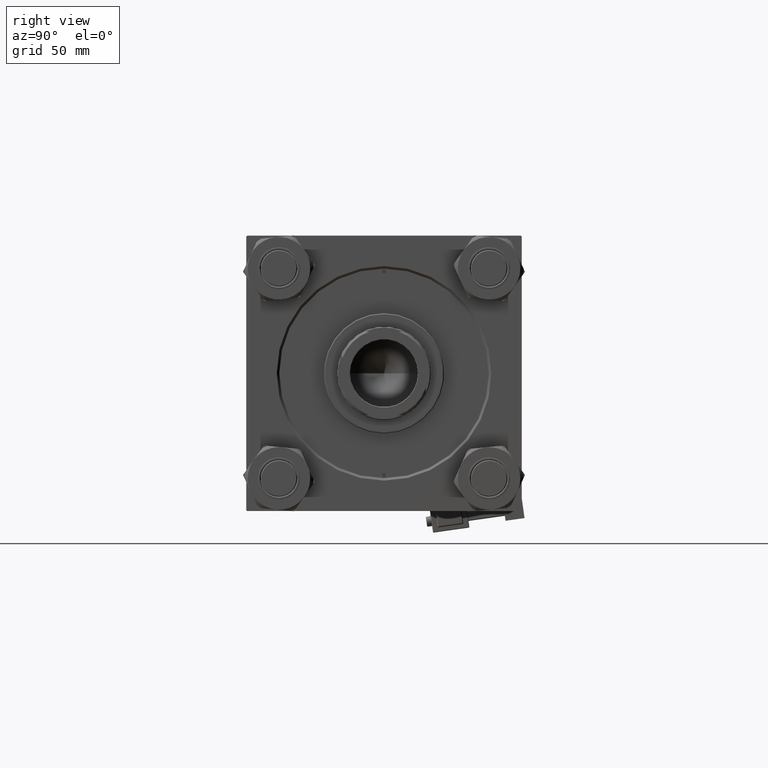
[diagram: clean part render]
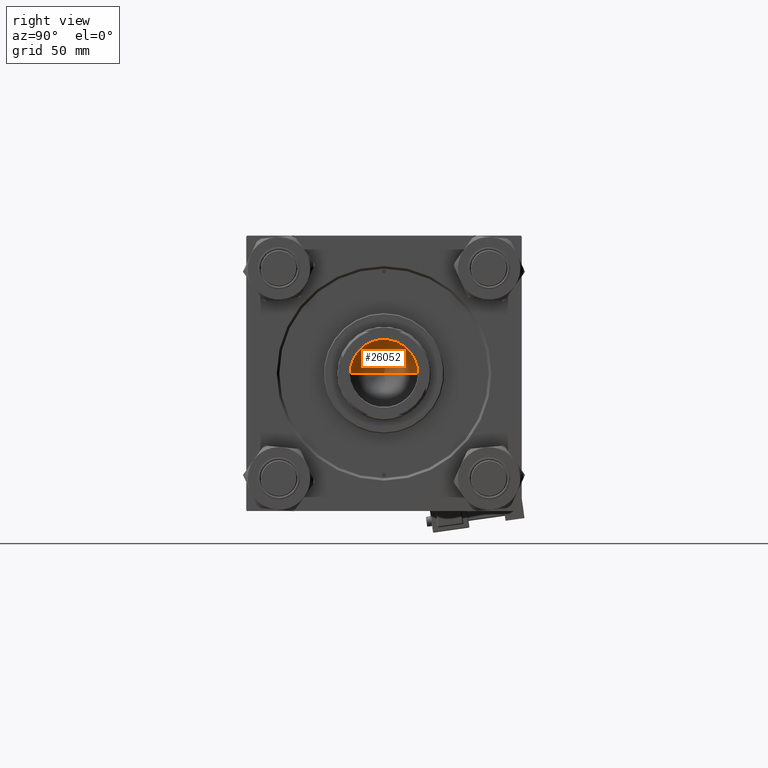
[diagram: same view with one face highlighted and labeled with its STEP entity id]
A machine part, right view. The second image highlights one B-rep face of the part: STEP entity #26052.
In plain terms, the highlighted conical surface has half-angle 59 deg.
Its self-contained STEP definition (entity closure, byte-faithful):
#1046 = DIRECTION ( 'NONE',  ( 1.000000000000000000, 0.000000000000000000, 0.000000000000000000 ) ) ;
#1817 = DIRECTION ( 'NONE',  ( -0.000000000000000000, -0.000000000000000000, 1.000000000000000000 ) ) ;
#2374 = EDGE_LOOP ( 'NONE', ( #46067, #49705, #45238 ) ) ;
#7985 = AXIS2_PLACEMENT_3D ( 'NONE', #51869, #15423, #49708 ) ;
#8533 = VECTOR ( 'NONE', #33515, 1000.000000000000000 ) ;
#9916 = EDGE_CURVE ( 'NONE', #26397, #41036, #41509, .T. ) ;
#13798 = CARTESIAN_POINT ( 'NONE',  ( 0.000000000000000000, 0.000000000000000000, 166.0000000000000000 ) ) ;
#15423 = DIRECTION ( 'NONE',  ( -0.000000000000000000, -0.000000000000000000, 1.000000000000000000 ) ) ;
#16588 = CARTESIAN_POINT ( 'NONE',  ( 20.24999999999998934, 0.000000000000000000, 166.0000000000000000 ) ) ;
#18674 = CARTESIAN_POINT ( 'NONE',  ( -1.584115414415908206E-14, 0.000000000000000000, 153.8325724646919070 ) ) ;
#19413 = FACE_OUTER_BOUND ( 'NONE', #2374, .T. ) ;
#20577 = CARTESIAN_POINT ( 'NONE',  ( 20.24999999999998934, 0.000000000000000000, 166.0000000000000000 ) ) ;
#26052 = ADVANCED_FACE ( 'NONE', ( #19413 ), #39437, .F. ) ;
#26397 = VERTEX_POINT ( 'NONE', #39441 ) ;
#31870 = VERTEX_POINT ( 'NONE', #18674 ) ;
#32297 = DIRECTION ( 'NONE',  ( 0.8571673007021117785, 0.000000000000000000, 0.5150380749100550437 ) ) ;
#32724 = LINE ( 'NONE', #48679, #8533 ) ;
#32822 = LINE ( 'NONE', #16588, #46837 ) ;
#33515 = DIRECTION ( 'NONE',  ( -0.8571673007021117785, 1.049727191138617956E-16, 0.5150380749100550437 ) ) ;
#39437 = CONICAL_SURFACE ( 'NONE', #7985, 20.24999999999998934, 1.029744258676653423 ) ;
#39441 = CARTESIAN_POINT ( 'NONE',  ( -20.24999999999998934, 2.479909768273389117E-15, 166.0000000000000000 ) ) ;
#41036 = VERTEX_POINT ( 'NONE', #20577 ) ;
#41509 = CIRCLE ( 'NONE', #52527, 20.24999999999998934 ) ;
#43797 = EDGE_CURVE ( 'NONE', #31870, #26397, #32724, .T. ) ;
#45238 = ORIENTED_EDGE ( 'NONE', *, *, #9916, .T. ) ;
#46067 = ORIENTED_EDGE ( 'NONE', *, *, #49245, .F. ) ;
#46837 = VECTOR ( 'NONE', #32297, 1000.000000000000000 ) ;
#48679 = CARTESIAN_POINT ( 'NONE',  ( -20.24999999999998934, 2.479909768273389117E-15, 166.0000000000000000 ) ) ;
#49245 = EDGE_CURVE ( 'NONE', #31870, #41036, #32822, .T. ) ;
#49705 = ORIENTED_EDGE ( 'NONE', *, *, #43797, .T. ) ;
#49708 = DIRECTION ( 'NONE',  ( 1.000000000000000000, 0.000000000000000000, 0.000000000000000000 ) ) ;
#51869 = CARTESIAN_POINT ( 'NONE',  ( 0.000000000000000000, 0.000000000000000000, 166.0000000000000000 ) ) ;
#52527 = AXIS2_PLACEMENT_3D ( 'NONE', #13798, #1817, #1046 ) ;